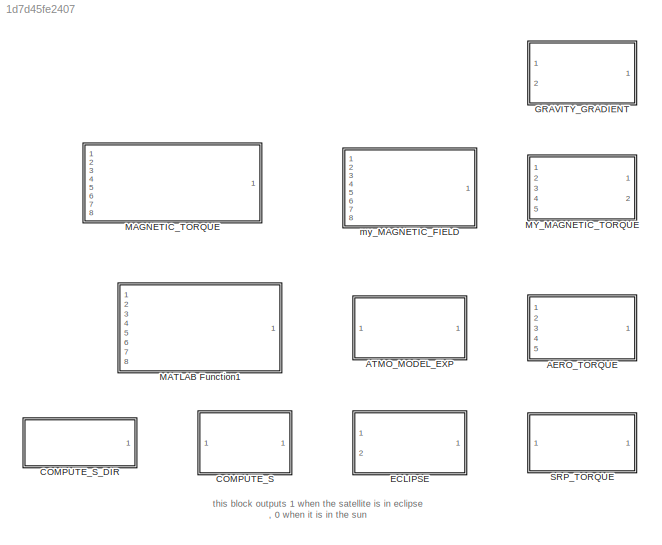
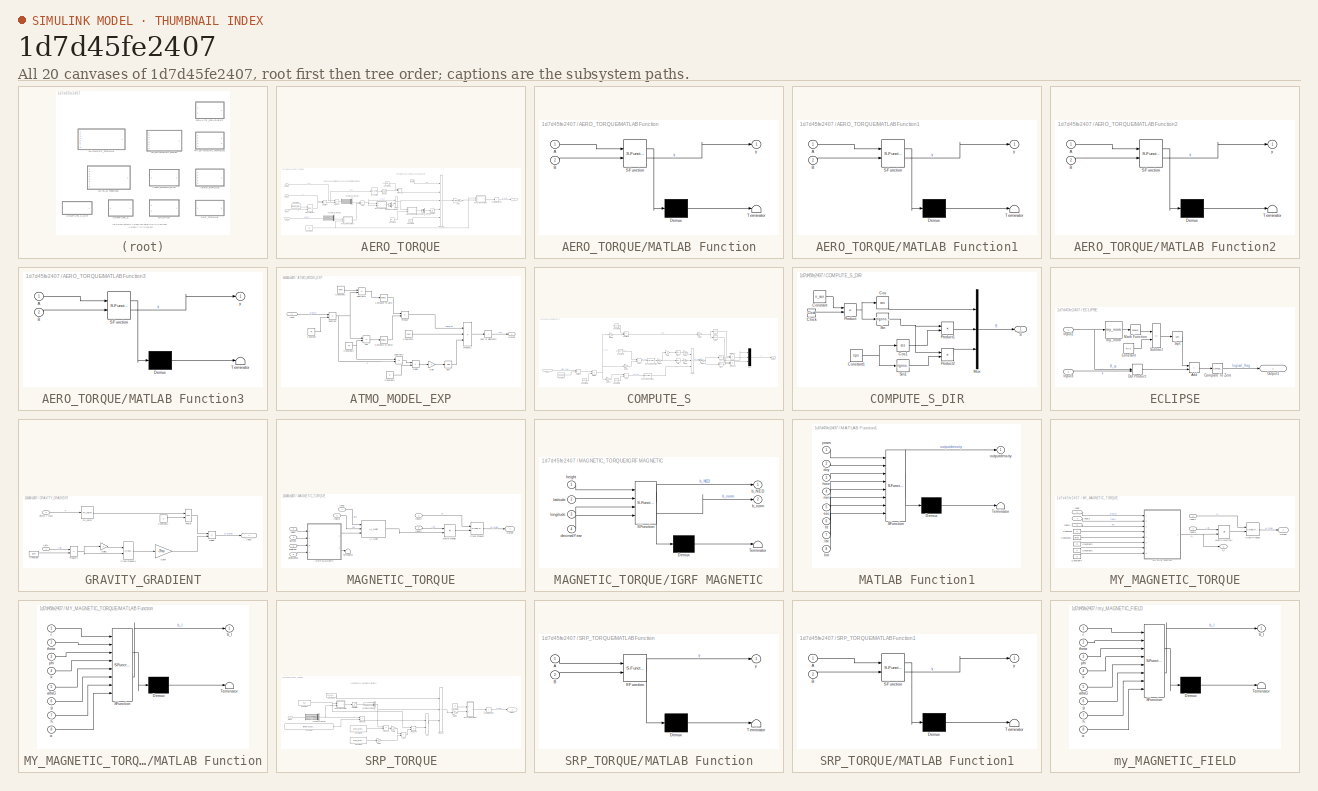
[diagram: thumbnail index - all 20 canvases of the model, root first then tree order]
MODEL slx_1d7d45fe2407
KIND library
CONFIG AbsTol = auto
CONFIG EnableMultiTasking = off
CONFIG FixedStep = auto
CONFIG MaxStep = auto
CONFIG MinStep = auto
CONFIG RelTol = 1e-3
CONFIG SampleTimeConstraint = Unconstrained
CONFIG SolverName = VariableStepAuto
CONFIG StartTime = 0.0
CONFIG StopTime = 10.0
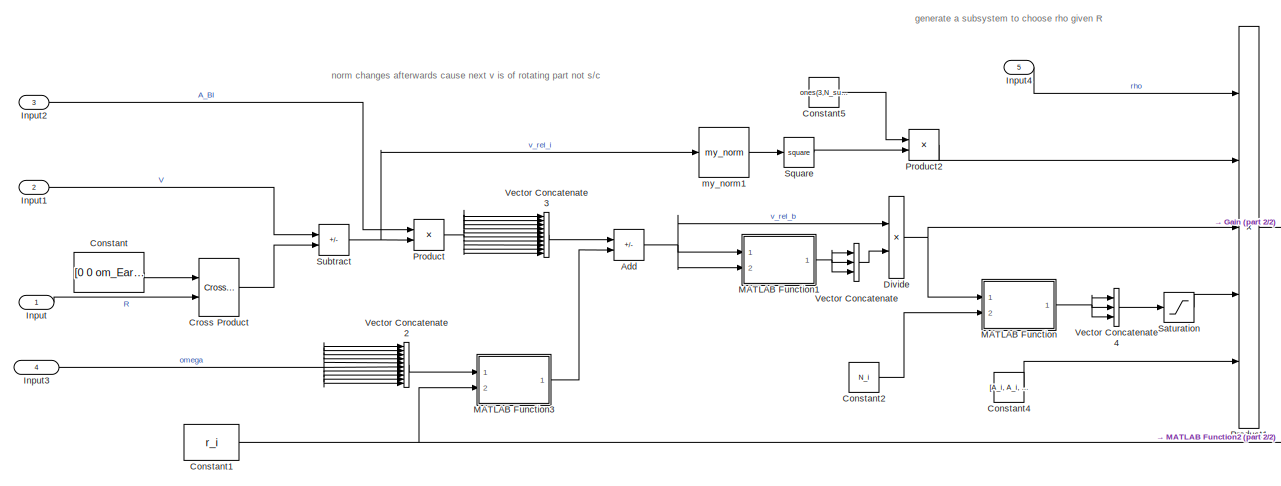
[diagram: AERO_TORQUE - part 1/2, center side, full height]
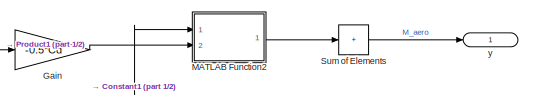
[diagram: AERO_TORQUE - part 2/2, middle right region]
BLOCK [SubSystem] AERO_TORQUE
  Ports = [5, 1]
  RequestExecContextInheritance = off
BLOCK [Sum] AERO_TORQUE/Add
  IconShape = rectangular
  Inputs = +-
  Ports = [2, 1]
BLOCK [Constant] AERO_TORQUE/Constant
  Value = [0 0 om_Earth]
BLOCK [Constant] AERO_TORQUE/Constant1
  Value = r_i
BLOCK [Constant] AERO_TORQUE/Constant2
  Value = N_i
BLOCK [Constant] AERO_TORQUE/Constant4
  Value = [A_i, A_i, A_i]'
BLOCK [Constant] AERO_TORQUE/Constant5
  Value = ones(3,N_sur)
BLOCK [Reference] AERO_TORQUE/Cross Product  REF=matrix_library/Cross Product
  Ports = [2, 1]
  SourceBlock = matrix_library/Cross Product
  SourceProductBaseCode = SL
  SourceType = CrossProduct
BLOCK [Product] AERO_TORQUE/Divide
  Inputs = */
  Ports = [2, 1]
BLOCK [Gain] AERO_TORQUE/Gain
  Gain = -0.5*Cd
BLOCK [Inport] AERO_TORQUE/Input
  IconDisplay = Signal name
BLOCK [Inport] AERO_TORQUE/Input1
  IconDisplay = Signal name
  Port = 2
BLOCK [Inport] AERO_TORQUE/Input2
  IconDisplay = Signal name
  Port = 3
BLOCK [Inport] AERO_TORQUE/Input3
  IconDisplay = Signal name
  Port = 4
BLOCK [Inport] AERO_TORQUE/Input4
  IconDisplay = Signal name
  Port = 5
BLOCK [SubSystem] AERO_TORQUE/MATLAB Function
  ErrorFcn = Stateflow.Translate.translate
  PermitHierarchicalResolution = ExplicitOnly
  Ports = [2, 1]
  RequestExecContextInheritance = off
  SFBlockType = MATLAB Function
  TreatAsAtomicUnit = on
BLOCK [Demux] AERO_TORQUE/MATLAB Function/ Demux 
  Outputs = 1
  Ports = [1, 1]
BLOCK [S-Function] AERO_TORQUE/MATLAB Function/ SFunction 
  EnableBusSupport = off
  FunctionName = sf_sfun
  PortCounts = [2 2]
  Ports = [2, 2]
  SFcnIsStateOwnerBlock = off
  SFunctionDeploymentMode = off
  Tag = Stateflow S-Function 4
BLOCK [Terminator] AERO_TORQUE/MATLAB Function/ Terminator 
BLOCK [Inport] AERO_TORQUE/MATLAB Function/A
BLOCK [Inport] AERO_TORQUE/MATLAB Function/B
  Port = 2
BLOCK [Outport] AERO_TORQUE/MATLAB Function/y
BLOCK [SubSystem] AERO_TORQUE/MATLAB Function1
  ErrorFcn = Stateflow.Translate.translate
  PermitHierarchicalResolution = ExplicitOnly
  Ports = [2, 1]
  RequestExecContextInheritance = off
  SFBlockType = MATLAB Function
  TreatAsAtomicUnit = on
BLOCK [Demux] AERO_TORQUE/MATLAB Function1/ Demux 
  Outputs = 1
  Ports = [1, 1]
BLOCK [S-Function] AERO_TORQUE/MATLAB Function1/ SFunction 
  EnableBusSupport = off
  FunctionName = sf_sfun
  PortCounts = [2 2]
  Ports = [2, 2]
  SFcnIsStateOwnerBlock = off
  SFunctionDeploymentMode = off
  Tag = Stateflow S-Function 5
BLOCK [Terminator] AERO_TORQUE/MATLAB Function1/ Terminator 
BLOCK [Inport] AERO_TORQUE/MATLAB Function1/A
BLOCK [Inport] AERO_TORQUE/MATLAB Function1/B
  Port = 2
BLOCK [Outport] AERO_TORQUE/MATLAB Function1/y
BLOCK [SubSystem] AERO_TORQUE/MATLAB Function2
  ErrorFcn = Stateflow.Translate.translate
  PermitHierarchicalResolution = ExplicitOnly
  Ports = [2, 1]
  RequestExecContextInheritance = off
  SFBlockType = MATLAB Function
  TreatAsAtomicUnit = on
BLOCK [Demux] AERO_TORQUE/MATLAB Function2/ Demux 
  Outputs = 1
  Ports = [1, 1]
BLOCK [S-Function] AERO_TORQUE/MATLAB Function2/ SFunction 
  EnableBusSupport = off
  FunctionName = sf_sfun
  PortCounts = [2 2]
  Ports = [2, 2]
  SFcnIsStateOwnerBlock = off
  SFunctionDeploymentMode = off
  Tag = Stateflow S-Function 6
BLOCK [Terminator] AERO_TORQUE/MATLAB Function2/ Terminator 
BLOCK [Inport] AERO_TORQUE/MATLAB Function2/A
BLOCK [Inport] AERO_TORQUE/MATLAB Function2/B
  Port = 2
BLOCK [Outport] AERO_TORQUE/MATLAB Function2/y
BLOCK [SubSystem] AERO_TORQUE/MATLAB Function3
  ErrorFcn = Stateflow.Translate.translate
  PermitHierarchicalResolution = ExplicitOnly
  Ports = [2, 1]
  RequestExecContextInheritance = off
  SFBlockType = MATLAB Function
  TreatAsAtomicUnit = on
BLOCK [Demux] AERO_TORQUE/MATLAB Function3/ Demux 
  Outputs = 1
  Ports = [1, 1]
BLOCK [S-Function] AERO_TORQUE/MATLAB Function3/ SFunction 
  EnableBusSupport = off
  FunctionName = sf_sfun
  PortCounts = [2 2]
  Ports = [2, 2]
  SFcnIsStateOwnerBlock = off
  SFunctionDeploymentMode = off
  Tag = Stateflow S-Function 7
BLOCK [Terminator] AERO_TORQUE/MATLAB Function3/ Terminator 
BLOCK [Inport] AERO_TORQUE/MATLAB Function3/A
BLOCK [Inport] AERO_TORQUE/MATLAB Function3/B
  Port = 2
BLOCK [Outport] AERO_TORQUE/MATLAB Function3/y
BLOCK [Product] AERO_TORQUE/Product
  Multiplication = Matrix(*)
  Ports = [2, 1]
BLOCK [Product] AERO_TORQUE/Product1
  Inputs = 5
  Ports = [5, 1]
BLOCK [Product] AERO_TORQUE/Product2
  Ports = [2, 1]
BLOCK [Saturate] AERO_TORQUE/Saturation
  LowerLimit = 0
  UpperLimit = inf
BLOCK [Math] AERO_TORQUE/Square
  Operator = square
  Ports = [1, 1]
BLOCK [Sum] AERO_TORQUE/Subtract
  IconShape = rectangular
  Inputs = +-
  Ports = [2, 1]
BLOCK [Sum] AERO_TORQUE/Sum of Elements
  CollapseDim = 2
  CollapseMode = Specified dimension
  IconShape = rectangular
  Inputs = +
  Ports = [1, 1]
BLOCK [Concatenate] AERO_TORQUE/Vector Concatenate
  Mode = Multidimensional array
  NumInputs = 3
  Ports = [3, 1]
BLOCK [Concatenate] AERO_TORQUE/Vector Concatenate2
  ConcatenateDimension = 2
  Mode = Multidimensional array
  NumInputs = N_sur
  Ports = [10, 1]
BLOCK [Concatenate] AERO_TORQUE/Vector Concatenate3
  ConcatenateDimension = 2
  Mode = Multidimensional array
  NumInputs = N_sur
  Ports = [10, 1]
BLOCK [Concatenate] AERO_TORQUE/Vector Concatenate4
  Mode = Multidimensional array
  NumInputs = 3
  Ports = [3, 1]
BLOCK [Reference] AERO_TORQUE/my_norm1  REF=my_math_ops/my_norm  (lib defined in slx_67cfba16120e)
  Ports = [1, 1]
  SourceBlock = my_math_ops/my_norm
  SourceProductName = My Mathematics Operations
  SourceType = SubSystem
BLOCK [Outport] AERO_TORQUE/y
  IconDisplay = Signal name
BLOCK [SubSystem] ATMO_MODEL_EXP
  Ports = [1, 1]
  RequestExecContextInheritance = off
BLOCK [Sum] ATMO_MODEL_EXP/Add
  IconShape = rectangular
  Inputs = +-
  Ports = [2, 1]
BLOCK [Reference] ATMO_MODEL_EXP/Compare To Zero  REF=simulink/Logic and Bit
Operations/Compare
To Zero
  Ports = [1, 1]
  SourceBlock = simulink/Logic and Bit\nOperations/Compare\nTo Zero
  SourceProductBaseCode = SL
  SourceType = Compare To Zero
BLOCK [Reference] ATMO_MODEL_EXP/Compare To Zero1  REF=simulink/Logic and Bit
Operations/Compare
To Zero
  Ports = [1, 1]
  SourceBlock = simulink/Logic and Bit\nOperations/Compare\nTo Zero
  SourceProductBaseCode = SL
  SourceType = Compare To Zero
BLOCK [Constant] ATMO_MODEL_EXP/Constant
  Value = Rt
BLOCK [Constant] ATMO_MODEL_EXP/Constant1
  Value = hmax
BLOCK [Constant] ATMO_MODEL_EXP/Constant2
  Value = h0
BLOCK [Constant] ATMO_MODEL_EXP/Constant3
  Value = rho0
BLOCK [Constant] ATMO_MODEL_EXP/Constant4
  Value = H
BLOCK [Product] ATMO_MODEL_EXP/Divide
  Inputs = */
  Ports = [2, 1]
BLOCK [Math] ATMO_MODEL_EXP/Exp
  Ports = [1, 1]
BLOCK [Gain] ATMO_MODEL_EXP/Gain
  Gain = -1
BLOCK [Inport] ATMO_MODEL_EXP/Input
  IconDisplay = Signal name
BLOCK [Outport] ATMO_MODEL_EXP/Output
  IconDisplay = Signal name
BLOCK [Product] ATMO_MODEL_EXP/Product
  Ports = [2, 1]
BLOCK [Product] ATMO_MODEL_EXP/Product1
  Inputs = 3
  Ports = [3, 1]
BLOCK [Sum] ATMO_MODEL_EXP/Subtract
  IconShape = rectangular
  Inputs = +-
  Ports = [2, 1]
BLOCK [Sum] ATMO_MODEL_EXP/Subtract1
  IconShape = rectangular
  Inputs = +-
  Ports = [2, 1]
BLOCK [Sum] ATMO_MODEL_EXP/Subtract2
  IconShape = rectangular
  Inputs = -+
  Ports = [2, 1]
BLOCK [Sum] ATMO_MODEL_EXP/Sum of Elements
  IconShape = rectangular
  Inputs = +
  Ports = [1, 1]
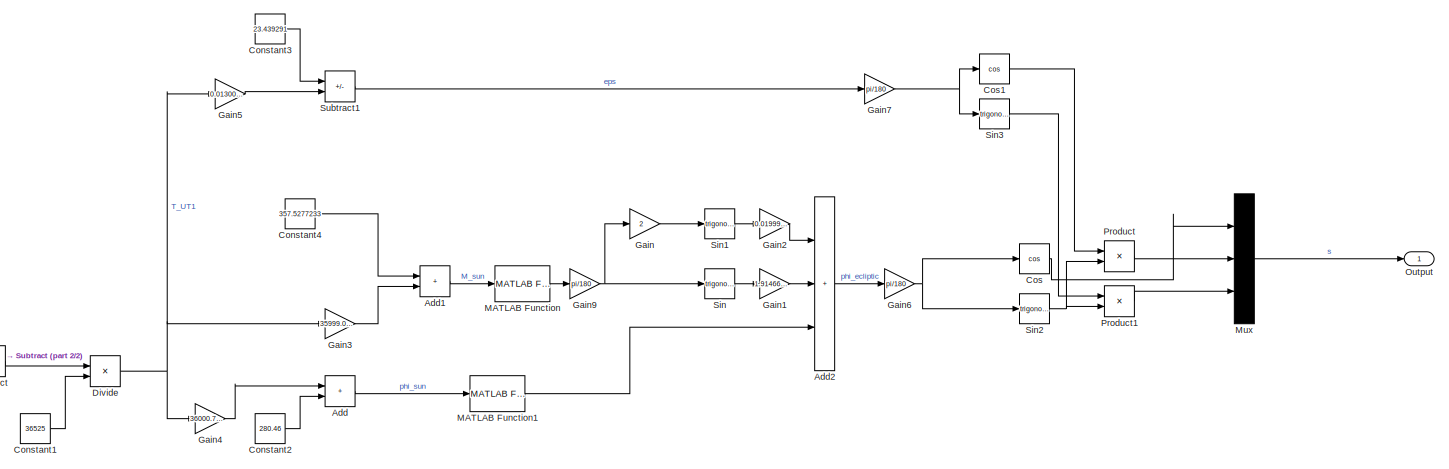
[diagram: COMPUTE_S - part 1/2, most of the canvas]
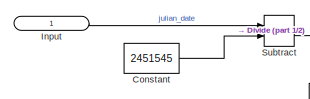
[diagram: COMPUTE_S - part 2/2, bottom left region]
BLOCK [SubSystem] COMPUTE_S
  Ports = [1, 1]
  RequestExecContextInheritance = off
BLOCK [Sum] COMPUTE_S/Add
  IconShape = rectangular
  Ports = [2, 1]
BLOCK [Sum] COMPUTE_S/Add1
  IconShape = rectangular
  Ports = [2, 1]
BLOCK [Sum] COMPUTE_S/Add2
  IconShape = rectangular
  Inputs = +++
  Ports = [3, 1]
BLOCK [Constant] COMPUTE_S/Constant
  Value = 2451545
BLOCK [Constant] COMPUTE_S/Constant1
  Value = 36525
BLOCK [Constant] COMPUTE_S/Constant2
  Value = 280.46
BLOCK [Constant] COMPUTE_S/Constant3
  Value = 23.439291
BLOCK [Constant] COMPUTE_S/Constant4
  Value = 357.5277233
BLOCK [Trigonometry] COMPUTE_S/Cos
  Operator = cos
  Ports = [1, 1]
BLOCK [Trigonometry] COMPUTE_S/Cos1
  Operator = cos
  Ports = [1, 1]
BLOCK [Product] COMPUTE_S/Divide
  Inputs = */
  Ports = [2, 1]
BLOCK [Gain] COMPUTE_S/Gain
  Gain = 2
BLOCK [Gain] COMPUTE_S/Gain1
  Gain = 1.914666471
BLOCK [Gain] COMPUTE_S/Gain2
  Gain = 0.019994643
BLOCK [Gain] COMPUTE_S/Gain3
  Gain = 35999.05034
BLOCK [Gain] COMPUTE_S/Gain4
  Gain = 36000.771
BLOCK [Gain] COMPUTE_S/Gain5
  Gain = 0.0130042
BLOCK [Gain] COMPUTE_S/Gain6
  Gain = pi/180
BLOCK [Gain] COMPUTE_S/Gain7
  Gain = pi/180
BLOCK [Gain] COMPUTE_S/Gain9
  Gain = pi/180
BLOCK [Inport] COMPUTE_S/Input
  IconDisplay = Signal name
BLOCK [Reference] COMPUTE_S/MATLAB Function  REF=my_math_ops/MATLAB Function  (lib defined in slx_67cfba16120e)
  Ports = [1, 1]
  SourceBlock = my_math_ops/MATLAB Function
  SourceType = SubSystem
BLOCK [Reference] COMPUTE_S/MATLAB Function1  REF=my_math_ops/MATLAB Function  (lib defined in slx_67cfba16120e)
  Ports = [1, 1]
  SourceBlock = my_math_ops/MATLAB Function
  SourceType = SubSystem
BLOCK [Mux] COMPUTE_S/Mux
  DisplayOption = bar
  Inputs = 3
  Ports = [3, 1]
BLOCK [Outport] COMPUTE_S/Output
  IconDisplay = Signal name
BLOCK [Product] COMPUTE_S/Product
  Ports = [2, 1]
BLOCK [Product] COMPUTE_S/Product1
  Ports = [2, 1]
BLOCK [Trigonometry] COMPUTE_S/Sin
  Ports = [1, 1]
BLOCK [Trigonometry] COMPUTE_S/Sin1
  Ports = [1, 1]
BLOCK [Trigonometry] COMPUTE_S/Sin2
  Ports = [1, 1]
BLOCK [Trigonometry] COMPUTE_S/Sin3
  Ports = [1, 1]
BLOCK [Sum] COMPUTE_S/Subtract
  IconShape = rectangular
  Inputs = +-
  Ports = [2, 1]
BLOCK [Sum] COMPUTE_S/Subtract1
  IconShape = rectangular
  Inputs = +-
  Ports = [2, 1]
BLOCK [SubSystem] COMPUTE_S_DIR
  Commented = on
  Ports = [0, 1]
  RequestExecContextInheritance = off
BLOCK [Clock] COMPUTE_S_DIR/Clock
BLOCK [Constant] COMPUTE_S_DIR/Constant
  Value = n_sun
BLOCK [Constant] COMPUTE_S_DIR/Constant1
  Value = eps
BLOCK [Trigonometry] COMPUTE_S_DIR/Cos
  Operator = cos
  Ports = [1, 1]
BLOCK [Trigonometry] COMPUTE_S_DIR/Cos1
  Operator = cos
  Ports = [1, 1]
BLOCK [Mux] COMPUTE_S_DIR/Mux
  DisplayOption = bar
  Inputs = 3
  Ports = [3, 1]
BLOCK [Product] COMPUTE_S_DIR/Product
  Ports = [2, 1]
BLOCK [Product] COMPUTE_S_DIR/Product1
  Ports = [2, 1]
BLOCK [Product] COMPUTE_S_DIR/Product2
  Ports = [2, 1]
BLOCK [Outport] COMPUTE_S_DIR/S
BLOCK [Trigonometry] COMPUTE_S_DIR/Sin
  Ports = [1, 1]
BLOCK [Trigonometry] COMPUTE_S_DIR/Sin1
  Ports = [1, 1]
BLOCK [SubSystem] ECLIPSE
  Ports = [2, 1]
  RequestExecContextInheritance = off
BLOCK [Sum] ECLIPSE/Add
  IconShape = rectangular
  Ports = [2, 1]
BLOCK [Reference] ECLIPSE/Compare To Zero  REF=simulink/Logic and Bit
Operations/Compare
To Zero
  Ports = [1, 1]
  SourceBlock = simulink/Logic and Bit\nOperations/Compare\nTo Zero
  SourceProductBaseCode = SL
  SourceType = Compare To Zero
BLOCK [Constant] ECLIPSE/Constant
  Value = Rt^2
BLOCK [DotProduct] ECLIPSE/Dot Product
  OutDataTypeStr = Inherit: Inherit via internal rule
BLOCK [Inport] ECLIPSE/Input2
  IconDisplay = Signal name
BLOCK [Inport] ECLIPSE/Input3
  IconDisplay = Signal name
  Port = 2
BLOCK [Math] ECLIPSE/Math Function
  Operator = square
  Ports = [1, 1]
BLOCK [Outport] ECLIPSE/Output1
  IconDisplay = Signal name
BLOCK [Sqrt] ECLIPSE/Sqrt
BLOCK [Sum] ECLIPSE/Subtract
  IconShape = rectangular
  Inputs = +-
  Ports = [2, 1]
BLOCK [Reference] ECLIPSE/my_norm  REF=my_math_ops/my_norm  (lib defined in slx_67cfba16120e)
  Ports = [1, 1]
  SourceBlock = my_math_ops/my_norm
  SourceProductName = My Mathematics Operations
  SourceType = SubSystem
BLOCK [SubSystem] GRAVITY_GRADIENT
  Ports = [2, 1]
  RequestExecContextInheritance = off
BLOCK [Inport] GRAVITY_GRADIENT/A_B//L
  IconDisplay = Signal name
BLOCK [Constant] GRAVITY_GRADIENT/Constant
  Value = [1 0 0]
BLOCK [Constant] GRAVITY_GRADIENT/Constant1
  Value = 3
BLOCK [Reference] GRAVITY_GRADIENT/Cross Product1  REF=matrix_library/Cross Product
  Ports = [2, 1]
  SourceBlock = matrix_library/Cross Product
  SourceProductBaseCode = SL
  SourceType = CrossProduct
BLOCK [Product] GRAVITY_GRADIENT/Divide
  Inputs = /*
  Ports = [2, 1]
BLOCK [Gain] GRAVITY_GRADIENT/Gain3
  Gain = J
  Multiplication = Matrix(K*u)
BLOCK [Gain] GRAVITY_GRADIENT/Gain4
  Gain = -3*mu
BLOCK [Outport] GRAVITY_GRADIENT/Input
  IconDisplay = Signal name
BLOCK [Math] GRAVITY_GRADIENT/Power
  Operator = pow
  Ports = [2, 1]
BLOCK [Product] GRAVITY_GRADIENT/Product1
  Multiplication = Matrix(*)
  Ports = [2, 1]
BLOCK [Inport] GRAVITY_GRADIENT/Vector r [3x1]
  IconDisplay = Signal name
  Port = 2
BLOCK [Reference] GRAVITY_GRADIENT/my_norm  REF=my_math_ops/my_norm  (lib defined in slx_67cfba16120e)
  Ports = [1, 1]
  SourceBlock = my_math_ops/my_norm
  SourceProductName = My Mathematics Operations
  SourceType = SubSystem
BLOCK [SubSystem] MAGNETIC_TORQUE
  Ports = [8, 1]
  RequestExecContextInheritance = off
BLOCK [Reference] MAGNETIC_TORQUE/A_I_NED  REF=ctransform/A_I_NED  (lib defined in slx_faa6184ef4a1)
  Ports = [3, 1]
  SourceBlock = ctransform/A_I_NED
  SourceProductName = Frame Transformations
  SourceType = SubSystem
BLOCK [Reference] MAGNETIC_TORQUE/Cross Product  REF=matrix_library/Cross Product
  Ports = [2, 1]
  SourceBlock = matrix_library/Cross Product
  SourceProductBaseCode = SL
  SourceType = CrossProduct
BLOCK [SubSystem] MAGNETIC_TORQUE/IGRF MAGNETIC
  ErrorFcn = Stateflow.Translate.translate
  PermitHierarchicalResolution = ExplicitOnly
  Ports = [4, 2]
  RequestExecContextInheritance = off
  SFBlockType = MATLAB Function
  TreatAsAtomicUnit = on
BLOCK [Demux] MAGNETIC_TORQUE/IGRF MAGNETIC/ Demux 
  Outputs = 1
  Ports = [1, 1]
BLOCK [S-Function] MAGNETIC_TORQUE/IGRF MAGNETIC/ SFunction 
  EnableBusSupport = off
  FunctionName = sf_sfun
  PortCounts = [4 3]
  Ports = [4, 3]
  SFcnIsStateOwnerBlock = off
  SFunctionDeploymentMode = off
  Tag = Stateflow S-Function 10
BLOCK [Terminator] MAGNETIC_TORQUE/IGRF MAGNETIC/ Terminator 
BLOCK [Outport] MAGNETIC_TORQUE/IGRF MAGNETIC/b_NED
BLOCK [Outport] MAGNETIC_TORQUE/IGRF MAGNETIC/b_norm
  Port = 2
BLOCK [Inport] MAGNETIC_TORQUE/IGRF MAGNETIC/decimalYear
  Port = 4
BLOCK [Inport] MAGNETIC_TORQUE/IGRF MAGNETIC/height
BLOCK [Inport] MAGNETIC_TORQUE/IGRF MAGNETIC/latitude
  Port = 2
BLOCK [Inport] MAGNETIC_TORQUE/IGRF MAGNETIC/longitude
  Port = 3
BLOCK [Inport] MAGNETIC_TORQUE/Input
  IconDisplay = Signal name
  Port = 7
BLOCK [Inport] MAGNETIC_TORQUE/Input1
  IconDisplay = Signal name
  Port = 2
BLOCK [Inport] MAGNETIC_TORQUE/Input2
  IconDisplay = Signal name
BLOCK [Inport] MAGNETIC_TORQUE/Input3
  IconDisplay = Signal name
  Port = 8
BLOCK [Product] MAGNETIC_TORQUE/Matrix Multiply
  Multiplication = Matrix(*)
  Ports = [2, 1]
BLOCK [Outport] MAGNETIC_TORQUE/Output
  IconDisplay = Signal name
BLOCK [Terminator] MAGNETIC_TORQUE/Terminator
BLOCK [Inport] MAGNETIC_TORQUE/decimalYear
  Port = 6
BLOCK [Inport] MAGNETIC_TORQUE/height
  Port = 3
BLOCK [Inport] MAGNETIC_TORQUE/latitude
  Port = 4
BLOCK [Inport] MAGNETIC_TORQUE/longitude
  Port = 5
BLOCK [SubSystem] MATLAB Function1
  ErrorFcn = Stateflow.Translate.translate
  PermitHierarchicalResolution = ExplicitOnly
  Ports = [8, 1]
  RequestExecContextInheritance = off
  SFBlockType = MATLAB Function
  TreatAsAtomicUnit = on
BLOCK [Demux] MATLAB Function1/ Demux 
  Outputs = 1
  Ports = [1, 1]
BLOCK [S-Function] MATLAB Function1/ SFunction 
  EnableBusSupport = off
  FunctionName = sf_sfun
  PortCounts = [8 2]
  Ports = [8, 2]
  SFcnIsStateOwnerBlock = off
  SFunctionDeploymentMode = off
  Tag = Stateflow S-Function 9
BLOCK [Terminator] MATLAB Function1/ Terminator 
BLOCK [Inport] MATLAB Function1/doy
  Port = 2
BLOCK [Inport] MATLAB Function1/hour
  Port = 3
BLOCK [Inport] MATLAB Function1/ht
  Port = 6
BLOCK [Inport] MATLAB Function1/lat
  Port = 7
BLOCK [Inport] MATLAB Function1/lon
  Port = 8
BLOCK [Inport] MATLAB Function1/min
  Port = 4
BLOCK [Outport] MATLAB Function1/outputdensity
BLOCK [Inport] MATLAB Function1/sec
  Port = 5
BLOCK [Inport] MATLAB Function1/years
BLOCK [SubSystem] MY_MAGNETIC_TORQUE
  Ports = [5, 2]
  RequestExecContextInheritance = off
BLOCK [Constant] MY_MAGNETIC_TORQUE/Constant
  Value = k
BLOCK [Constant] MY_MAGNETIC_TORQUE/Constant1
  Value = alfaG
BLOCK [Constant] MY_MAGNETIC_TORQUE/Constant2
  Value = g
BLOCK [Constant] MY_MAGNETIC_TORQUE/Constant3
  Value = h
BLOCK [Constant] MY_MAGNETIC_TORQUE/Constant4
  Value = a
BLOCK [Reference] MY_MAGNETIC_TORQUE/Cross Product  REF=matrix_library/Cross Product
  Ports = [2, 1]
  SourceBlock = matrix_library/Cross Product
  SourceProductBaseCode = SL
  SourceType = CrossProduct
BLOCK [Inport] MY_MAGNETIC_TORQUE/Input
  IconDisplay = Signal name
  Port = 3
BLOCK [Inport] MY_MAGNETIC_TORQUE/Input1
  IconDisplay = Signal name
BLOCK [Inport] MY_MAGNETIC_TORQUE/Input2
  IconDisplay = Signal name
  Port = 2
BLOCK [Inport] MY_MAGNETIC_TORQUE/Input3
  IconDisplay = Signal name
  Port = 4
BLOCK [Inport] MY_MAGNETIC_TORQUE/Input4
  IconDisplay = Signal name
  Port = 5
BLOCK [SubSystem] MY_MAGNETIC_TORQUE/MATLAB Function
  ErrorFcn = Stateflow.Translate.translate
  PermitHierarchicalResolution = ExplicitOnly
  Ports = [8, 1]
  RequestExecContextInheritance = off
  SFBlockType = MATLAB Function
  TreatAsAtomicUnit = on
BLOCK [Demux] MY_MAGNETIC_TORQUE/MATLAB Function/ Demux 
  Outputs = 1
  Ports = [1, 1]
BLOCK [S-Function] MY_MAGNETIC_TORQUE/MATLAB Function/ SFunction 
  EnableBusSupport = off
  FunctionName = sf_sfun
  PortCounts = [8 2]
  Ports = [8, 2]
  SFcnIsStateOwnerBlock = off
  SFunctionDeploymentMode = off
  Tag = Stateflow S-Function 2
BLOCK [Terminator] MY_MAGNETIC_TORQUE/MATLAB Function/ Terminator 
BLOCK [Inport] MY_MAGNETIC_TORQUE/MATLAB Function/a
  Port = 8
BLOCK [Inport] MY_MAGNETIC_TORQUE/MATLAB Function/alfaG
  Port = 5
BLOCK [Outport] MY_MAGNETIC_TORQUE/MATLAB Function/b_I
BLOCK [Inport] MY_MAGNETIC_TORQUE/MATLAB Function/g
  Port = 6
BLOCK [Inport] MY_MAGNETIC_TORQUE/MATLAB Function/h
  Port = 7
BLOCK [Inport] MY_MAGNETIC_TORQUE/MATLAB Function/k
  Port = 4
BLOCK [Inport] MY_MAGNETIC_TORQUE/MATLAB Function/phi
  Port = 3
BLOCK [Inport] MY_MAGNETIC_TORQUE/MATLAB Function/r
BLOCK [Inport] MY_MAGNETIC_TORQUE/MATLAB Function/theta
  Port = 2
BLOCK [Product] MY_MAGNETIC_TORQUE/Matrix Multiply
  Multiplication = Matrix(*)
  Ports = [2, 1]
BLOCK [Outport] MY_MAGNETIC_TORQUE/Output
  IconDisplay = Signal name
BLOCK [Outport] MY_MAGNETIC_TORQUE/b_i
  Port = 2
BLOCK [SubSystem] SRP_TORQUE
  Ports = [1, 1]
  RequestExecContextInheritance = off
BLOCK [Sum] SRP_TORQUE/Add
  IconShape = rectangular
  Ports = [2, 1]
BLOCK [Sum] SRP_TORQUE/Add1
  IconShape = rectangular
  Ports = [2, 1]
BLOCK [Constant] SRP_TORQUE/Constant
  Value = N_i
BLOCK [Constant] SRP_TORQUE/Constant1
  Value = [A_i A_i, A_i]'
BLOCK [Constant] SRP_TORQUE/Constant2
  Value = [ones(N_sur,1) - rho_s,ones(N_sur,1) - rho_s,ones(N_sur,1) - rho_s]'
  VectorParams1D = off
BLOCK [Constant] SRP_TORQUE/Constant3
  Value = [rho_s, rho_s, rho_s]'
BLOCK [Constant] SRP_TORQUE/Constant4
  Value = [rho_d, rho_d, rho_d]'
BLOCK [Constant] SRP_TORQUE/Constant5
  Value = r_i
BLOCK [Gain] SRP_TORQUE/Gain
  Gain = 2
BLOCK [Gain] SRP_TORQUE/Gain1
  Gain = 2/3
BLOCK [Gain] SRP_TORQUE/Gain2
  Gain = -P
BLOCK [Inport] SRP_TORQUE/Input
  IconDisplay = Signal name
BLOCK [SubSystem] SRP_TORQUE/MATLAB Function
  ErrorFcn = Stateflow.Translate.translate
  PermitHierarchicalResolution = ExplicitOnly
  Ports = [2, 1]
  RequestExecContextInheritance = off
  SFBlockType = MATLAB Function
  TreatAsAtomicUnit = on
BLOCK [Demux] SRP_TORQUE/MATLAB Function/ Demux 
  Outputs = 1
  Ports = [1, 1]
BLOCK [S-Function] SRP_TORQUE/MATLAB Function/ SFunction 
  EnableBusSupport = off
  FunctionName = sf_sfun
  PortCounts = [2 2]
  Ports = [2, 2]
  SFcnIsStateOwnerBlock = off
  SFunctionDeploymentMode = off
  Tag = Stateflow S-Function 1
BLOCK [Terminator] SRP_TORQUE/MATLAB Function/ Terminator 
BLOCK [Inport] SRP_TORQUE/MATLAB Function/A
BLOCK [Inport] SRP_TORQUE/MATLAB Function/B
  Port = 2
BLOCK [Outport] SRP_TORQUE/MATLAB Function/y
BLOCK [SubSystem] SRP_TORQUE/MATLAB Function1
  ErrorFcn = Stateflow.Translate.translate
  PermitHierarchicalResolution = ExplicitOnly
  Ports = [2, 1]
  RequestExecContextInheritance = off
  SFBlockType = MATLAB Function
  TreatAsAtomicUnit = on
BLOCK [Demux] SRP_TORQUE/MATLAB Function1/ Demux 
  Outputs = 1
  Ports = [1, 1]
BLOCK [S-Function] SRP_TORQUE/MATLAB Function1/ SFunction 
  EnableBusSupport = off
  FunctionName = sf_sfun
  PortCounts = [2 2]
  Ports = [2, 2]
  SFcnIsStateOwnerBlock = off
  SFunctionDeploymentMode = off
  Tag = Stateflow S-Function 3
BLOCK [Terminator] SRP_TORQUE/MATLAB Function1/ Terminator 
BLOCK [Inport] SRP_TORQUE/MATLAB Function1/A
BLOCK [Inport] SRP_TORQUE/MATLAB Function1/B
  Port = 2
BLOCK [Outport] SRP_TORQUE/MATLAB Function1/y
BLOCK [Outport] SRP_TORQUE/Output
  IconDisplay = Signal name
BLOCK [Product] SRP_TORQUE/Product
  Inputs = 3
  Ports = [3, 1]
BLOCK [Product] SRP_TORQUE/Product1
  Ports = [2, 1]
BLOCK [Product] SRP_TORQUE/Product3
  Ports = [2, 1]
BLOCK [Product] SRP_TORQUE/Product4
  Ports = [2, 1]
BLOCK [Saturate] SRP_TORQUE/Saturation
  LowerLimit = 0
  UpperLimit = inf
BLOCK [Sum] SRP_TORQUE/Sum of Elements
  CollapseDim = 2
  CollapseMode = Specified dimension
  IconShape = rectangular
  Inputs = +
  Ports = [1, 1]
BLOCK [Concatenate] SRP_TORQUE/Vector Concatenate
  ConcatenateDimension = 2
  Mode = Multidimensional array
  NumInputs = N_sur
  Ports = [10, 1]
BLOCK [Concatenate] SRP_TORQUE/Vector Concatenate1
  Mode = Multidimensional array
  NumInputs = 3
  Ports = [3, 1]
BLOCK [SubSystem] my_MAGNETIC_FIELD
  ErrorFcn = Stateflow.Translate.translate
  PermitHierarchicalResolution = ExplicitOnly
  Ports = [8, 1]
  RequestExecContextInheritance = off
  SFBlockType = MATLAB Function
  TreatAsAtomicUnit = on
BLOCK [Demux] my_MAGNETIC_FIELD/ Demux 
  Outputs = 1
  Ports = [1, 1]
BLOCK [S-Function] my_MAGNETIC_FIELD/ SFunction 
  EnableBusSupport = off
  FunctionName = sf_sfun
  PortCounts = [8 2]
  Ports = [8, 2]
  SFcnIsStateOwnerBlock = off
  SFunctionDeploymentMode = off
  Tag = Stateflow S-Function 8
BLOCK [Terminator] my_MAGNETIC_FIELD/ Terminator 
BLOCK [Inport] my_MAGNETIC_FIELD/a
  Port = 8
BLOCK [Inport] my_MAGNETIC_FIELD/alfaG
  Port = 5
BLOCK [Outport] my_MAGNETIC_FIELD/b_I
BLOCK [Inport] my_MAGNETIC_FIELD/g
  Port = 6
BLOCK [Inport] my_MAGNETIC_FIELD/h
  Port = 7
BLOCK [Inport] my_MAGNETIC_FIELD/k
  Port = 4
BLOCK [Inport] my_MAGNETIC_FIELD/phi
  Port = 3
BLOCK [Inport] my_MAGNETIC_FIELD/r
BLOCK [Inport] my_MAGNETIC_FIELD/theta
  Port = 2
ANNOTATION (root): this block outputs 1 when the satellite is in eclipse , 0 when it is in the sun
ANNOTATION AERO_TORQUE: generate a subsystem to choose rho given R
ANNOTATION AERO_TORQUE: norm changes afterwards cause next v is of rotating part not s/c
ANNOTATION SRP_TORQUE: column i means computation over i surface
NET AERO_TORQUE/Add:1 -> AERO_TORQUE/Divide:1, AERO_TORQUE/MATLAB Function1:1, AERO_TORQUE/MATLAB Function1:2
NET AERO_TORQUE/Constant1:1 -> AERO_TORQUE/MATLAB Function2:1, AERO_TORQUE/MATLAB Function3:2
LINE AERO_TORQUE/Constant2:1 -> AERO_TORQUE/MATLAB Function:2
LINE AERO_TORQUE/Constant4:1 -> AERO_TORQUE/Product1:5
LINE AERO_TORQUE/Constant5:1 -> AERO_TORQUE/Product2:1
LINE AERO_TORQUE/Constant:1 -> AERO_TORQUE/Cross Product:1
LINE AERO_TORQUE/Cross Product:1 -> AERO_TORQUE/Subtract:2
NET AERO_TORQUE/Divide:1 -> AERO_TORQUE/MATLAB Function:1, AERO_TORQUE/Product1:3
LINE AERO_TORQUE/Gain:1 -> AERO_TORQUE/MATLAB Function2:2
LINE AERO_TORQUE/Input1:1 -> AERO_TORQUE/Subtract:1
LINE AERO_TORQUE/Input2:1 -> AERO_TORQUE/Product:1
NET AERO_TORQUE/Input3:1 -> AERO_TORQUE/Vector Concatenate2:1, AERO_TORQUE/Vector Concatenate2:10, AERO_TORQUE/Vector Concatenate2:2, AERO_TORQUE/Vector Concatenate2:3, AERO_TORQUE/Vector Concatenate2:4, AERO_TORQUE/Vector Concatenate2:5, AERO_TORQUE/Vector Concatenate2:6, AERO_TORQUE/Vector Concatenate2:7, AERO_TORQUE/Vector Concatenate2:8, AERO_TORQUE/Vector Concatenate2:9
LINE AERO_TORQUE/Input4:1 -> AERO_TORQUE/Product1:1
LINE AERO_TORQUE/Input:1 -> AERO_TORQUE/Cross Product:2
NET AERO_TORQUE/MATLAB Function1:1 -> AERO_TORQUE/Vector Concatenate:1, AERO_TORQUE/Vector Concatenate:2, AERO_TORQUE/Vector Concatenate:3
LINE AERO_TORQUE/MATLAB Function2:1 -> AERO_TORQUE/Sum of Elements:1
LINE AERO_TORQUE/MATLAB Function3:1 -> AERO_TORQUE/Add:2
NET AERO_TORQUE/MATLAB Function:1 -> AERO_TORQUE/Vector Concatenate4:1, AERO_TORQUE/Vector Concatenate4:2, AERO_TORQUE/Vector Concatenate4:3
LINE AERO_TORQUE/Product1:1 -> AERO_TORQUE/Gain:1
LINE AERO_TORQUE/Product2:1 -> AERO_TORQUE/Product1:2
NET AERO_TORQUE/Product:1 -> AERO_TORQUE/Vector Concatenate3:1, AERO_TORQUE/Vector Concatenate3:10, AERO_TORQUE/Vector Concatenate3:2, AERO_TORQUE/Vector Concatenate3:3, AERO_TORQUE/Vector Concatenate3:4, AERO_TORQUE/Vector Concatenate3:5, AERO_TORQUE/Vector Concatenate3:6, AERO_TORQUE/Vector Concatenate3:7, AERO_TORQUE/Vector Concatenate3:8, AERO_TORQUE/Vector Concatenate3:9
LINE AERO_TORQUE/Saturation:1 -> AERO_TORQUE/Product1:4
LINE AERO_TORQUE/Square:1 -> AERO_TORQUE/Product2:2
NET AERO_TORQUE/Subtract:1 -> AERO_TORQUE/Product:2, AERO_TORQUE/my_norm1:1
LINE AERO_TORQUE/Sum of Elements:1 -> AERO_TORQUE/y:1
LINE AERO_TORQUE/Vector Concatenate2:1 -> AERO_TORQUE/MATLAB Function3:1
LINE AERO_TORQUE/Vector Concatenate3:1 -> AERO_TORQUE/Add:1
LINE AERO_TORQUE/Vector Concatenate4:1 -> AERO_TORQUE/Saturation:1
LINE AERO_TORQUE/Vector Concatenate:1 -> AERO_TORQUE/Divide:2
LINE AERO_TORQUE/my_norm1:1 -> AERO_TORQUE/Square:1
LINE ATMO_MODEL_EXP/Add:1 -> ATMO_MODEL_EXP/Compare To Zero1:1
LINE ATMO_MODEL_EXP/Compare To Zero1:1 -> ATMO_MODEL_EXP/Product:2
LINE ATMO_MODEL_EXP/Compare To Zero:1 -> ATMO_MODEL_EXP/Product:1
LINE ATMO_MODEL_EXP/Constant1:1 -> ATMO_MODEL_EXP/Subtract1:1
NET ATMO_MODEL_EXP/Constant2:1 -> ATMO_MODEL_EXP/Add:2, ATMO_MODEL_EXP/Subtract2:1
LINE ATMO_MODEL_EXP/Constant3:1 -> ATMO_MODEL_EXP/Product1:2
LINE ATMO_MODEL_EXP/Constant4:1 -> ATMO_MODEL_EXP/Divide:2
LINE ATMO_MODEL_EXP/Constant:1 -> ATMO_MODEL_EXP/Subtract:2
LINE ATMO_MODEL_EXP/Divide:1 -> ATMO_MODEL_EXP/Gain:1
LINE ATMO_MODEL_EXP/Exp:1 -> ATMO_MODEL_EXP/Product1:3
LINE ATMO_MODEL_EXP/Gain:1 -> ATMO_MODEL_EXP/Exp:1
LINE ATMO_MODEL_EXP/Input:1 -> ATMO_MODEL_EXP/Subtract:1
LINE ATMO_MODEL_EXP/Product1:1 -> ATMO_MODEL_EXP/Sum of Elements:1
LINE ATMO_MODEL_EXP/Product:1 -> ATMO_MODEL_EXP/Product1:1
LINE ATMO_MODEL_EXP/Subtract1:1 -> ATMO_MODEL_EXP/Compare To Zero:1
LINE ATMO_MODEL_EXP/Subtract2:1 -> ATMO_MODEL_EXP/Divide:1
NET ATMO_MODEL_EXP/Subtract:1 -> ATMO_MODEL_EXP/Add:1, ATMO_MODEL_EXP/Subtract1:2, ATMO_MODEL_EXP/Subtract2:2
LINE ATMO_MODEL_EXP/Sum of Elements:1 -> ATMO_MODEL_EXP/Output:1
LINE COMPUTE_S/Add1:1 -> COMPUTE_S/MATLAB Function:1
LINE COMPUTE_S/Add2:1 -> COMPUTE_S/Gain6:1
LINE COMPUTE_S/Add:1 -> COMPUTE_S/MATLAB Function1:1
LINE COMPUTE_S/Constant1:1 -> COMPUTE_S/Divide:2
LINE COMPUTE_S/Constant2:1 -> COMPUTE_S/Add:2
LINE COMPUTE_S/Constant3:1 -> COMPUTE_S/Subtract1:1
LINE COMPUTE_S/Constant4:1 -> COMPUTE_S/Add1:1
LINE COMPUTE_S/Constant:1 -> COMPUTE_S/Subtract:2
LINE COMPUTE_S/Cos1:1 -> COMPUTE_S/Product:1
LINE COMPUTE_S/Cos:1 -> COMPUTE_S/Mux:1
NET COMPUTE_S/Divide:1 -> COMPUTE_S/Gain3:1, COMPUTE_S/Gain4:1, COMPUTE_S/Gain5:1
LINE COMPUTE_S/Gain1:1 -> COMPUTE_S/Add2:2
LINE COMPUTE_S/Gain2:1 -> COMPUTE_S/Add2:1
LINE COMPUTE_S/Gain3:1 -> COMPUTE_S/Add1:2
LINE COMPUTE_S/Gain4:1 -> COMPUTE_S/Add:1
LINE COMPUTE_S/Gain5:1 -> COMPUTE_S/Subtract1:2
NET COMPUTE_S/Gain6:1 -> COMPUTE_S/Cos:1, COMPUTE_S/Sin2:1
NET COMPUTE_S/Gain7:1 -> COMPUTE_S/Cos1:1, COMPUTE_S/Sin3:1
NET COMPUTE_S/Gain9:1 -> COMPUTE_S/Gain:1, COMPUTE_S/Sin:1
LINE COMPUTE_S/Gain:1 -> COMPUTE_S/Sin1:1
LINE COMPUTE_S/Input:1 -> COMPUTE_S/Subtract:1
LINE COMPUTE_S/MATLAB Function1:1 -> COMPUTE_S/Add2:3
LINE COMPUTE_S/MATLAB Function:1 -> COMPUTE_S/Gain9:1
LINE COMPUTE_S/Mux:1 -> COMPUTE_S/Output:1
LINE COMPUTE_S/Product1:1 -> COMPUTE_S/Mux:3
LINE COMPUTE_S/Product:1 -> COMPUTE_S/Mux:2
LINE COMPUTE_S/Sin1:1 -> COMPUTE_S/Gain2:1
NET COMPUTE_S/Sin2:1 -> COMPUTE_S/Product1:2, COMPUTE_S/Product:2
LINE COMPUTE_S/Sin3:1 -> COMPUTE_S/Product1:1
LINE COMPUTE_S/Sin:1 -> COMPUTE_S/Gain1:1
LINE COMPUTE_S/Subtract1:1 -> COMPUTE_S/Gain7:1
LINE COMPUTE_S/Subtract:1 -> COMPUTE_S/Divide:1
LINE COMPUTE_S_DIR/Clock:1 -> COMPUTE_S_DIR/Product:2
NET COMPUTE_S_DIR/Constant1:1 -> COMPUTE_S_DIR/Cos1:1, COMPUTE_S_DIR/Sin1:1
LINE COMPUTE_S_DIR/Constant:1 -> COMPUTE_S_DIR/Product:1
LINE COMPUTE_S_DIR/Cos1:1 -> COMPUTE_S_DIR/Product1:2
LINE COMPUTE_S_DIR/Cos:1 -> COMPUTE_S_DIR/Mux:1
LINE COMPUTE_S_DIR/Mux:1 -> COMPUTE_S_DIR/S:1
LINE COMPUTE_S_DIR/Product1:1 -> COMPUTE_S_DIR/Mux:2
LINE COMPUTE_S_DIR/Product2:1 -> COMPUTE_S_DIR/Mux:3
NET COMPUTE_S_DIR/Product:1 -> COMPUTE_S_DIR/Cos:1, COMPUTE_S_DIR/Sin:1
LINE COMPUTE_S_DIR/Sin1:1 -> COMPUTE_S_DIR/Product2:2
NET COMPUTE_S_DIR/Sin:1 -> COMPUTE_S_DIR/Product1:1, COMPUTE_S_DIR/Product2:1
LINE ECLIPSE/Add:1 -> ECLIPSE/Compare To Zero:1
LINE ECLIPSE/Compare To Zero:1 -> ECLIPSE/Output1:1
LINE ECLIPSE/Constant:1 -> ECLIPSE/Subtract:2
LINE ECLIPSE/Dot Product:1 -> ECLIPSE/Add:2
NET ECLIPSE/Input2:1 -> ECLIPSE/Dot Product:1, ECLIPSE/my_norm:1
LINE ECLIPSE/Input3:1 -> ECLIPSE/Dot Product:2
LINE ECLIPSE/Math Function:1 -> ECLIPSE/Subtract:1
LINE ECLIPSE/Sqrt:1 -> ECLIPSE/Add:1
LINE ECLIPSE/Subtract:1 -> ECLIPSE/Sqrt:1
LINE ECLIPSE/my_norm:1 -> ECLIPSE/Math Function:1
LINE GRAVITY_GRADIENT/A_B//L:1 -> GRAVITY_GRADIENT/Product1:1
LINE GRAVITY_GRADIENT/Constant1:1 -> GRAVITY_GRADIENT/Power:2
LINE GRAVITY_GRADIENT/Constant:1 -> GRAVITY_GRADIENT/Product1:2
LINE GRAVITY_GRADIENT/Cross Product1:1 -> GRAVITY_GRADIENT/Gain4:1
LINE GRAVITY_GRADIENT/Divide:1 -> GRAVITY_GRADIENT/Input:1
LINE GRAVITY_GRADIENT/Gain3:1 -> GRAVITY_GRADIENT/Cross Product1:1
LINE GRAVITY_GRADIENT/Gain4:1 -> GRAVITY_GRADIENT/Divide:2
LINE GRAVITY_GRADIENT/Power:1 -> GRAVITY_GRADIENT/Divide:1
NET GRAVITY_GRADIENT/Product1:1 -> GRAVITY_GRADIENT/Cross Product1:2, GRAVITY_GRADIENT/Gain3:1
LINE GRAVITY_GRADIENT/Vector r [3x1]:1 -> GRAVITY_GRADIENT/my_norm:1
LINE GRAVITY_GRADIENT/my_norm:1 -> GRAVITY_GRADIENT/Power:1
LINE MAGNETIC_TORQUE/A_I_NED:1 -> MAGNETIC_TORQUE/Matrix Multiply:2
LINE MAGNETIC_TORQUE/Cross Product:1 -> MAGNETIC_TORQUE/Output:1
LINE MAGNETIC_TORQUE/IGRF MAGNETIC:1 -> MAGNETIC_TORQUE/A_I_NED:3
LINE MAGNETIC_TORQUE/IGRF MAGNETIC:2 -> MAGNETIC_TORQUE/Terminator:1
LINE MAGNETIC_TORQUE/Input1:1 -> MAGNETIC_TORQUE/Matrix Multiply:1
LINE MAGNETIC_TORQUE/Input2:1 -> MAGNETIC_TORQUE/Cross Product:1
LINE MAGNETIC_TORQUE/Input3:1 -> MAGNETIC_TORQUE/A_I_NED:2
LINE MAGNETIC_TORQUE/Input:1 -> MAGNETIC_TORQUE/A_I_NED:1
LINE MAGNETIC_TORQUE/Matrix Multiply:1 -> MAGNETIC_TORQUE/Cross Product:2
LINE MAGNETIC_TORQUE/decimalYear:1 -> MAGNETIC_TORQUE/IGRF MAGNETIC:4
LINE MAGNETIC_TORQUE/height:1 -> MAGNETIC_TORQUE/IGRF MAGNETIC:1
LINE MAGNETIC_TORQUE/latitude:1 -> MAGNETIC_TORQUE/IGRF MAGNETIC:2
LINE MAGNETIC_TORQUE/longitude:1 -> MAGNETIC_TORQUE/IGRF MAGNETIC:3
LINE MY_MAGNETIC_TORQUE/Constant1:1 -> MY_MAGNETIC_TORQUE/MATLAB Function:5
LINE MY_MAGNETIC_TORQUE/Constant2:1 -> MY_MAGNETIC_TORQUE/MATLAB Function:6
LINE MY_MAGNETIC_TORQUE/Constant3:1 -> MY_MAGNETIC_TORQUE/MATLAB Function:7
LINE MY_MAGNETIC_TORQUE/Constant4:1 -> MY_MAGNETIC_TORQUE/MATLAB Function:8
LINE MY_MAGNETIC_TORQUE/Constant:1 -> MY_MAGNETIC_TORQUE/MATLAB Function:4
LINE MY_MAGNETIC_TORQUE/Cross Product:1 -> MY_MAGNETIC_TORQUE/Output:1
LINE MY_MAGNETIC_TORQUE/Input1:1 -> MY_MAGNETIC_TORQUE/Matrix Multiply:1
LINE MY_MAGNETIC_TORQUE/Input2:1 -> MY_MAGNETIC_TORQUE/Cross Product:1
LINE MY_MAGNETIC_TORQUE/Input3:1 -> MY_MAGNETIC_TORQUE/MATLAB Function:2
LINE MY_MAGNETIC_TORQUE/Input4:1 -> MY_MAGNETIC_TORQUE/MATLAB Function:3
LINE MY_MAGNETIC_TORQUE/Input:1 -> MY_MAGNETIC_TORQUE/MATLAB Function:1
NET MY_MAGNETIC_TORQUE/MATLAB Function:1 -> MY_MAGNETIC_TORQUE/Matrix Multiply:2, MY_MAGNETIC_TORQUE/b_i:1
LINE MY_MAGNETIC_TORQUE/Matrix Multiply:1 -> MY_MAGNETIC_TORQUE/Cross Product:2
LINE SRP_TORQUE/Add1:1 -> SRP_TORQUE/Product4:2
LINE SRP_TORQUE/Add:1 -> SRP_TORQUE/Product:3
LINE SRP_TORQUE/Constant1:1 -> SRP_TORQUE/Product:1
LINE SRP_TORQUE/Constant2:1 -> SRP_TORQUE/Product3:2
LINE SRP_TORQUE/Constant3:1 -> SRP_TORQUE/Product1:2
LINE SRP_TORQUE/Constant4:1 -> SRP_TORQUE/Gain1:1
LINE SRP_TORQUE/Constant5:1 -> SRP_TORQUE/MATLAB Function1:1
NET SRP_TORQUE/Constant:1 -> SRP_TORQUE/MATLAB Function:1, SRP_TORQUE/Product4:1
LINE SRP_TORQUE/Gain1:1 -> SRP_TORQUE/Add1:2
LINE SRP_TORQUE/Gain2:1 -> SRP_TORQUE/MATLAB Function1:2
LINE SRP_TORQUE/Gain:1 -> SRP_TORQUE/Add1:1
NET SRP_TORQUE/Input:1 -> SRP_TORQUE/Vector Concatenate:1, SRP_TORQUE/Vector Concatenate:10, SRP_TORQUE/Vector Concatenate:2, SRP_TORQUE/Vector Concatenate:3, SRP_TORQUE/Vector Concatenate:4, SRP_TORQUE/Vector Concatenate:5, SRP_TORQUE/Vector Concatenate:6, SRP_TORQUE/Vector Concatenate:7, SRP_TORQUE/Vector Concatenate:8, SRP_TORQUE/Vector Concatenate:9
LINE SRP_TORQUE/MATLAB Function1:1 -> SRP_TORQUE/Sum of Elements:1
LINE SRP_TORQUE/MATLAB Function:1 -> SRP_TORQUE/Saturation:1
LINE SRP_TORQUE/Product1:1 -> SRP_TORQUE/Gain:1
LINE SRP_TORQUE/Product3:1 -> SRP_TORQUE/Add:1
LINE SRP_TORQUE/Product4:1 -> SRP_TORQUE/Add:2
LINE SRP_TORQUE/Product:1 -> SRP_TORQUE/Gain2:1
NET SRP_TORQUE/Saturation:1 -> SRP_TORQUE/Vector Concatenate1:1, SRP_TORQUE/Vector Concatenate1:2, SRP_TORQUE/Vector Concatenate1:3
LINE SRP_TORQUE/Sum of Elements:1 -> SRP_TORQUE/Output:1
NET SRP_TORQUE/Vector Concatenate1:1 -> SRP_TORQUE/Product1:1, SRP_TORQUE/Product:2
NET SRP_TORQUE/Vector Concatenate:1 -> SRP_TORQUE/MATLAB Function:2, SRP_TORQUE/Product3:1
note: NET lines group one-source signal fan-out (src -> all destinations, sorted); 1:1 wires keep LINE
CHART MATLAB Function1 states=1 transitions=1
  STATE_LABEL 'eML_blk_kernel()'
  STATE_LABEL 'SCRIPT:\nfunction outputdensity  = jb2k8(years,doy,hour,min,sec,ht,lat,lon)\n\n% JB2008 Calling Script.\n% jb2k8 is used to call the JB2008 model in MATLAB. It can also be embedded\n% in a SIMULINK block if desired.\n%\n% Replace any outputs with a ~ to skip them.\n% [~,~,~,~,~,~,~,~,~,~,~,~,outputdensity,~,~,~,~,~,~,~,~,~,~] = jb2k8(years,doy,hour,min,sec,ht,lat,lon)\n%\n%\n%\n\n\n\n%% Check for latest version ...<+1895ch>'
CHART MAGNETIC_TORQUE/IGRF MAGNETIC states=1 transitions=1
  STATE_LABEL 'eML_blk_kernel()'
  STATE_LABEL 'SCRIPT:\nfunction [b_NED,b_norm] = fun(height,latitude,longitude,decimalYear)\n%returns magnetic field in nT and NED reference frame\n[b_NED,~,~,b_norm,~,~,~,~,~,~] = igrfmagm(height,latitude,longitude,decimalYear);\n'
CHART SRP_TORQUE/MATLAB Function states=1 transitions=1
  STATE_LABEL 'eML_blk_kernel()'
  STATE_LABEL 'SCRIPT:\nfunction y = fcn(A,B)\ny = dot(A,B);\n'
CHART MY_MAGNETIC_TORQUE/MATLAB Function states=1 transitions=1
  STATE_LABEL 'eML_blk_kernel()'
  STATE_LABEL 'SCRIPT:\nfunction b_I = MAGNETIC_FIELD(r,theta,phi,k,alfaG,g,h,a)\n%calculate in ECI coordinates the Earth magnetic field b via a spherical\n%harmonic model (quasi-Schmidt normalized formulas)\n%\n% PROTOTYPE:\n%   b_I = MAGNETIC_FIELD(r,theta,phi,k,alfaG,g,h,R)\n%\n% INPUT:\n%    r[-]            radius at which b is computed [Km]\n%    theta[-]        latitude at which b is computed [rad]\n%    phi[-]      ...<+1391ch>'
CHART SRP_TORQUE/MATLAB Function1 states=1 transitions=1
  STATE_LABEL 'eML_blk_kernel()'
  STATE_LABEL 'SCRIPT:\nfunction y = fcn(A,B)\ny = cross(A,B);\n'
CHART AERO_TORQUE/MATLAB Function states=1 transitions=1
  STATE_LABEL 'eML_blk_kernel()'
  STATE_LABEL 'SCRIPT:\nfunction y = fcn(A,B)\n\ny = dot(A,B);\n'
CHART AERO_TORQUE/MATLAB Function1 states=1 transitions=1
  STATE_LABEL 'eML_blk_kernel()'
  STATE_LABEL 'SCRIPT:\nfunction y = fcn(A,B)\n\ny = dot(A,B);\n'
CHART AERO_TORQUE/MATLAB Function2 states=1 transitions=1
  STATE_LABEL 'eML_blk_kernel()'
  STATE_LABEL 'SCRIPT:\nfunction y = fcn(A,B)\n\ny = cross(A,B);\n'
CHART AERO_TORQUE/MATLAB Function3 states=1 transitions=1
  STATE_LABEL 'eML_blk_kernel()'
  STATE_LABEL 'SCRIPT:\nfunction y = fcn(A,B)\n\ny = cross(A,B);\n'
CHART my_MAGNETIC_FIELD states=1 transitions=1
  STATE_LABEL 'eML_blk_kernel()'
  STATE_LABEL 'SCRIPT:\nfunction b_I = MAGNETIC_FIELD(r,theta,phi,k,alfaG,g,h,a)\n%calculate in ECI coordinates the Earth magnetic field b via a spherical\n%harmonic model (quasi-Schmidt normalized formulas)\n%\n% PROTOTYPE:\n%   b_I = MAGNETIC_FIELD(r,theta,phi,k,alfaG,g,h,R)\n%\n% INPUT:\n%    r[-]            radius at which b is computed [Km]\n%    theta[-]        latitude at which b is computed [rad]\n%    phi[-]      ...<+1391ch>'
CHART  states=0 transitions=0
CHART  states=0 transitions=0
CHART  states=0 transitions=0
CHART  states=0 transitions=0
CHART  states=0 transitions=0
CHART  states=0 transitions=0
CHART  states=0 transitions=0
CHART  states=0 transitions=0
CHART  states=0 transitions=0
CHART  states=0 transitions=0
